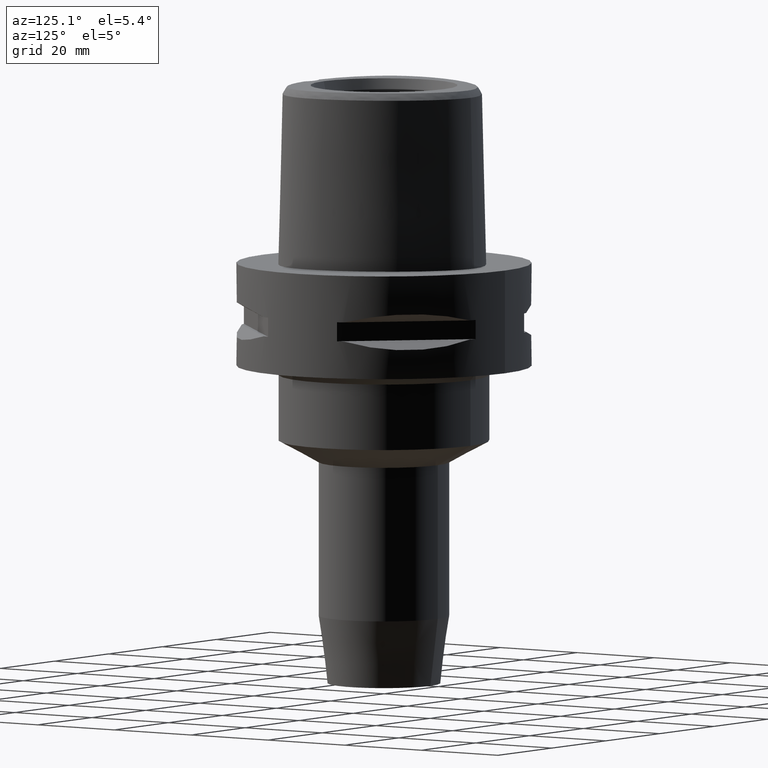
[diagram: clean part render]
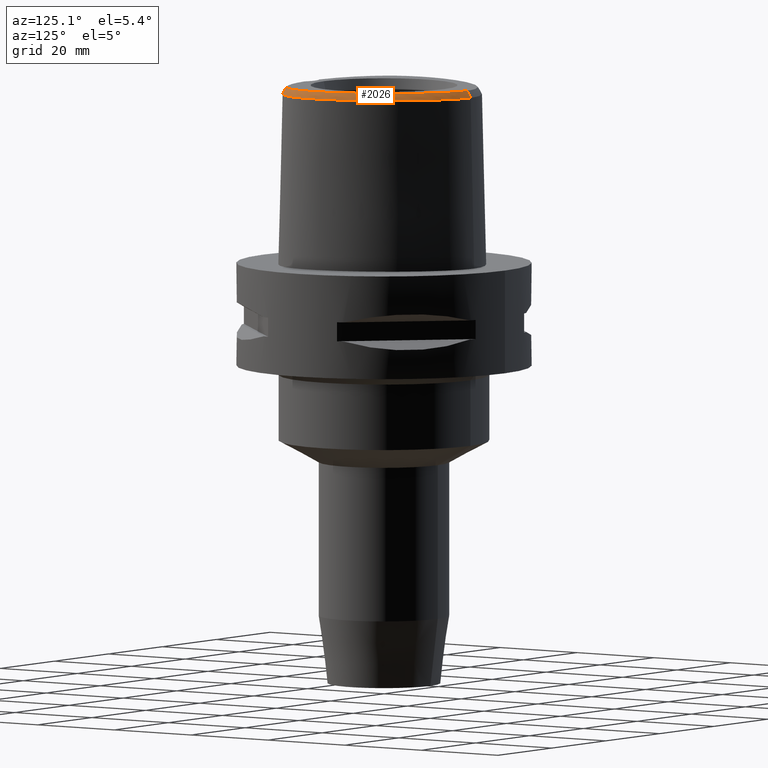
[diagram: same view with one face highlighted and labeled with its STEP entity id]
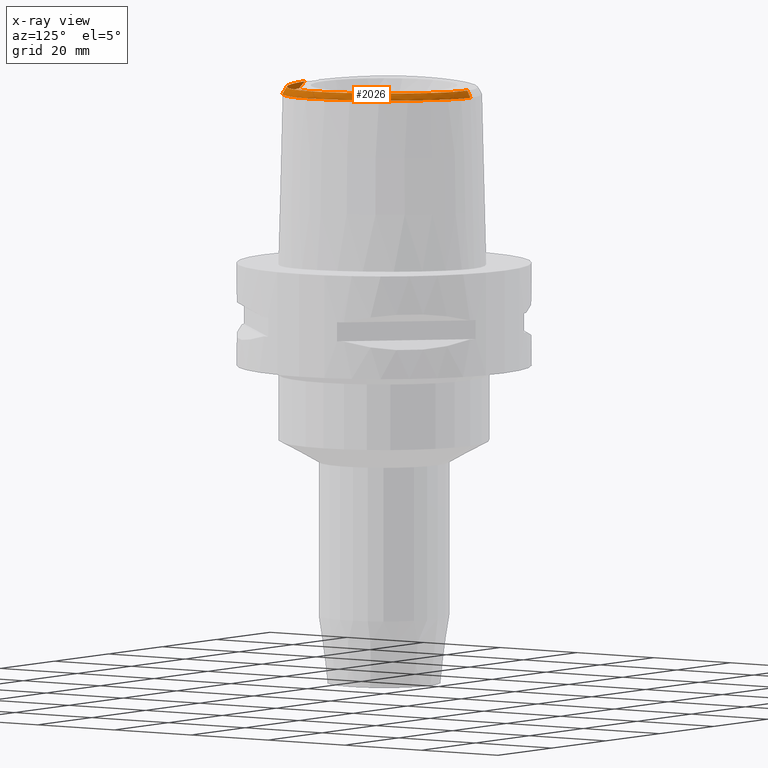
[diagram: x-ray of the same camera — body ghosted, the highlighted face saturated]
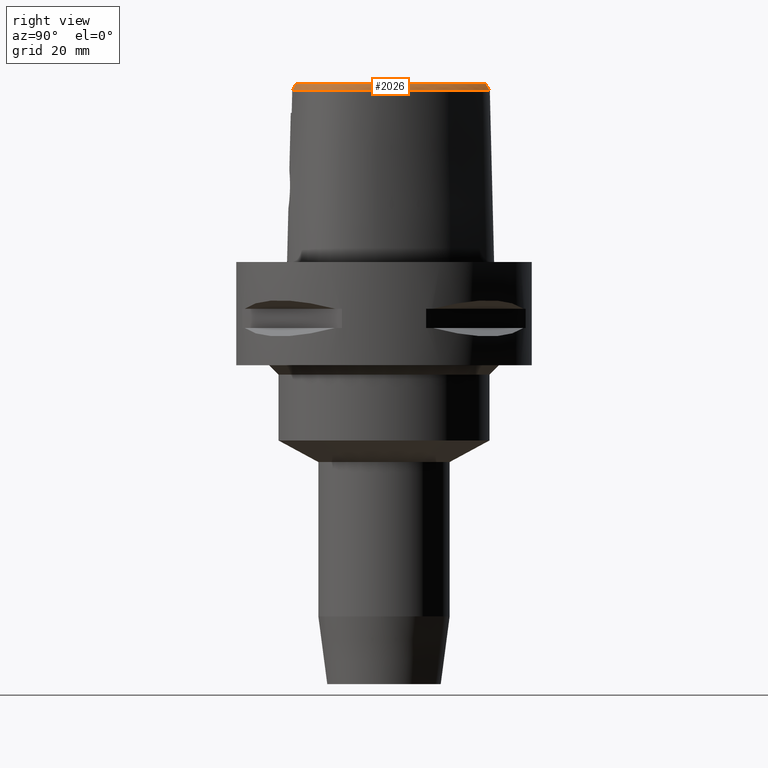
[diagram: same view with one face highlighted and labeled with its STEP entity id]
A machine part, auxiliary view. The second image highlights one B-rep face of the part: STEP entity #2026.
The next image is the same camera in x-ray: the body ghosted, the highlighted face saturated — about 0% of this face is hidden behind the body in this view.
A second angle (right view) of the same face is appended — the face is thin or edge-on in the first view.
In plain terms, the highlighted face is a freeform B-spline surface patch.
Its self-contained STEP definition (entity closure, byte-faithful):
#72=CARTESIAN_POINT('',(-3.470663397238E-11,2.168728795390E1,3.8E1));
#77=CARTESIAN_POINT('',(-3.470663397238E-11,2.168728795390E1,3.8E1));
#78=CARTESIAN_POINT('',(3.600081486032E-1,2.168728795390E1,3.8E1));
#79=CARTESIAN_POINT('',(1.095814633195E0,2.164921257123E1,3.8E1));
#80=CARTESIAN_POINT('',(2.237045914867E0,2.147217550050E1,3.8E1));
#81=CARTESIAN_POINT('',(3.445385499409E0,2.116021851481E1,3.8E1));
#82=CARTESIAN_POINT('',(4.731603891525E0,2.069110374592E1,3.8E1));
#83=CARTESIAN_POINT('',(6.066237151130E0,2.005638731326E1,3.8E1));
#84=CARTESIAN_POINT('',(7.390373626614E0,1.928024451342E1,3.8E1));
#85=CARTESIAN_POINT('',(8.721111052503E0,1.835274876699E1,3.8E1));
#86=CARTESIAN_POINT('',(1.006306682264E1,1.726170920306E1,3.8E1));
#87=CARTESIAN_POINT('',(1.145626739706E1,1.595592580129E1,3.8E1));
#88=CARTESIAN_POINT('',(1.296077108307E1,1.432560092740E1,3.8E1));
#89=CARTESIAN_POINT('',(1.451274077919E1,1.235208670969E1,3.8E1));
#90=CARTESIAN_POINT('',(1.594259143087E1,1.020526619252E1,3.8E1));
#91=CARTESIAN_POINT('',(1.721680311329E1,7.931705562021E0,3.8E1));
#92=CARTESIAN_POINT('',(1.829606143106E1,5.597042509225E0,3.8E1));
#93=CARTESIAN_POINT('',(1.912931562740E1,3.343492327677E0,3.8E1));
#94=CARTESIAN_POINT('',(1.970359997833E1,1.333997744826E0,3.8E1));
#95=CARTESIAN_POINT('',(2.008357130727E1,-4.716261842530E-1,3.8E1));
#96=CARTESIAN_POINT('',(2.031277215513E1,-2.149121673685E0,3.8E1));
#97=CARTESIAN_POINT('',(2.040928267634E1,-3.736122188726E0,3.8E1));
#98=CARTESIAN_POINT('',(2.037878769746E1,-5.257945165443E0,3.8E1));
#99=CARTESIAN_POINT('',(2.021995697845E1,-6.701646224879E0,3.8E1));
#100=CARTESIAN_POINT('',(1.994991294827E1,-7.999711896863E0,3.8E1));
#101=CARTESIAN_POINT('',(1.958720184886E1,-9.161367824425E0,3.8E1));
#102=CARTESIAN_POINT('',(1.914381200021E1,-1.020176955586E1,3.8E1));
#103=CARTESIAN_POINT('',(1.862446316469E1,-1.114221936084E1,3.8E1));
#104=CARTESIAN_POINT('',(1.799605509206E1,-1.204719476781E1,3.8E1));
#105=CARTESIAN_POINT('',(1.722625151621E1,-1.294716617093E1,3.8E1));
#106=CARTESIAN_POINT('',(1.630340192709E1,-1.383262678892E1,3.8E1));
#107=CARTESIAN_POINT('',(1.519513042100E1,-1.470744016310E1,3.8E1));
#108=CARTESIAN_POINT('',(1.394028754596E1,-1.552208338004E1,3.8E1));
#109=CARTESIAN_POINT('',(1.256738277710E1,-1.625871373852E1,3.8E1));
#110=CARTESIAN_POINT('',(1.105156259701E1,-1.692694529073E1,3.8E1));
#111=CARTESIAN_POINT('',(9.392329850105E0,-1.751890748088E1,3.8E1));
#112=CARTESIAN_POINT('',(7.480586106843E0,-1.805458470416E1,3.8E1));
#113=CARTESIAN_POINT('',(5.209046193961E0,-1.851024520604E1,3.8E1));
#114=CARTESIAN_POINT('',(3.553979628531E0,-1.871058638715E1,3.8E1));
#115=CARTESIAN_POINT('',(2.682287482607E0,-1.878036330229E1,3.8E1));
#136=CARTESIAN_POINT('',(3.637738219117E0,-1.956971420299E1,3.652185956444E1));
#137=CARTESIAN_POINT('',(3.538536273609E0,-1.946451284953E1,3.671639311911E1));
#138=CARTESIAN_POINT('',(3.334098632793E0,-1.926602617850E1,3.708535300827E1));
#139=CARTESIAN_POINT('',(3.014431591359E0,-1.900393218886E1,3.757690690227E1));
#140=CARTESIAN_POINT('',(2.793767706676E0,-1.885122769916E1,3.786560215335E1));
#141=CARTESIAN_POINT('',(2.682287482607E0,-1.878036330229E1,3.8E1));
#146=CARTESIAN_POINT('',(-1.617285911022E-11,2.256201468012E1,
3.652186680744E1));
#147=CARTESIAN_POINT('',(3.781707213584E-1,2.256201468011E1,3.652186680744E1));
#148=CARTESIAN_POINT('',(1.134730585226E0,2.252498071705E1,3.652179120620E1));
#149=CARTESIAN_POINT('',(2.356063939295E0,2.234195482065E1,3.652187787897E1));
#150=CARTESIAN_POINT('',(3.623834858981E0,2.202086391621E1,3.652186376102E1));
#151=CARTESIAN_POINT('',(4.952045757185E0,2.154676064978E1,3.652187402960E1));
#152=CARTESIAN_POINT('',(6.329481850397E0,2.090709828528E1,3.652186529344E1));
#153=CARTESIAN_POINT('',(7.723199685630E0,2.010637444152E1,3.652186854430E1));
#154=CARTESIAN_POINT('',(9.105385253287E0,1.915869409911E1,3.652186637425E1));
#155=CARTESIAN_POINT('',(1.050375335652E1,1.803874747388E1,3.652186471326E1));
#156=CARTESIAN_POINT('',(1.194349139875E1,1.670689193153E1,3.652187410923E1));
#157=CARTESIAN_POINT('',(1.347317864387E1,1.506994472095E1,3.652184803073E1));
#158=CARTESIAN_POINT('',(1.501668659181E1,1.314288457789E1,3.652187441190E1));
#159=CARTESIAN_POINT('',(1.648740919358E1,1.098786647899E1,3.652186151903E1));
#160=CARTESIAN_POINT('',(1.781598819928E1,8.678010767453E0,3.652186754999E1));
#161=CARTESIAN_POINT('',(1.893654303366E1,6.324554453322E0,3.652185257979E1));
#162=CARTESIAN_POINT('',(1.980029771016E1,4.090529039235E0,3.652186292907E1));
#163=CARTESIAN_POINT('',(2.043911920172E1,1.993518421664E0,3.652186534459E1));
#164=CARTESIAN_POINT('',(2.087682742100E1,6.488729142452E-2,3.652187516659E1));
#165=CARTESIAN_POINT('',(2.114826763138E1,-1.722731342534E0,3.652186215059E1));
#166=CARTESIAN_POINT('',(2.127602838199E1,-3.404450108041E0,3.652186790573E1));
#167=CARTESIAN_POINT('',(2.126873709660E1,-5.016094142175E0,3.652187095036E1));
#168=CARTESIAN_POINT('',(2.113114608610E1,-6.519810638381E0,3.652186951853E1));
#169=CARTESIAN_POINT('',(2.087477494423E1,-7.906445118288E0,3.652186475025E1));
#170=CARTESIAN_POINT('',(2.051516421701E1,-9.163969957777E0,3.652187606956E1));
#171=CARTESIAN_POINT('',(2.006346148229E1,-1.030530076995E1,3.652186813654E1));
#172=CARTESIAN_POINT('',(1.952443206762E1,-1.134661648806E1,3.652186808509E1));
#173=CARTESIAN_POINT('',(1.888354313508E1,-1.232283446321E1,3.652184821316E1));
#174=CARTESIAN_POINT('',(1.811807688083E1,-1.326963555217E1,3.652187114369E1));
#175=CARTESIAN_POINT('',(1.720139163244E1,-1.420243467213E1,3.652186714110E1));
#176=CARTESIAN_POINT('',(1.610761708013E1,-1.512115090738E1,3.652186914286E1));
#177=CARTESIAN_POINT('',(1.484401880206E1,-1.599721347267E1,3.652186772627E1));
#178=CARTESIAN_POINT('',(1.343434215592E1,-1.680274531018E1,3.652186438753E1));
#179=CARTESIAN_POINT('',(1.191851958667E1,-1.751648808611E1,3.652186788177E1));
#180=CARTESIAN_POINT('',(1.023240463630E1,-1.816430724128E1,3.652186509690E1));
#181=CARTESIAN_POINT('',(8.316043436837E0,-1.874503310632E1,3.652185929622E1));
#182=CARTESIAN_POINT('',(6.149923362368E0,-1.923360237106E1,3.652187626638E1));
#183=CARTESIAN_POINT('',(4.502877813721E0,-1.947753645443E1,3.652183733818E1));
#184=CARTESIAN_POINT('',(3.637738219117E0,-1.956971420299E1,3.652185956444E1));
#242=DIRECTION('',(-1.079073595906E-11,-5.092834681090E-1,8.605988316927E-1));
#243=VECTOR('',#242,1.717563559379E0);
#244=CARTESIAN_POINT('',(-1.617285911022E-11,2.256201468012E1,
3.652186680744E1));
#245=LINE('',#244,#243);
#1554=CARTESIAN_POINT('',(2.682287482605E0,-1.878036330229E1,3.8E1));
#1555=VERTEX_POINT('',#1554);
#1556=VERTEX_POINT('',#72);
#1561=VERTEX_POINT('',#136);
#1568=CARTESIAN_POINT('',(-1.617285911022E-11,2.256201468012E1,
3.652186680744E1));
#1569=VERTEX_POINT('',#1568);
#1769=CARTESIAN_POINT('',(2.066179407215E0,-1.872795564002E1,3.816189696351E1));
#1770=CARTESIAN_POINT('',(2.088043105936E0,-1.908273778746E1,3.756124089126E1));
#1771=CARTESIAN_POINT('',(2.109906804657E0,-1.943751993490E1,3.696058481902E1));
#1772=CARTESIAN_POINT('',(2.131770503377E0,-1.979230208234E1,3.635992874677E1));
#1773=CARTESIAN_POINT('',(2.269682290328E0,-1.871541268844E1,3.816189695828E1));
#1774=CARTESIAN_POINT('',(2.293712775902E0,-1.907006130914E1,3.756124090543E1));
#1775=CARTESIAN_POINT('',(2.317743261475E0,-1.942470992984E1,3.696058485257E1));
#1776=CARTESIAN_POINT('',(2.341773747049E0,-1.977935855054E1,3.635992879972E1));
#1777=CARTESIAN_POINT('',(2.635571019639E0,-1.868948771538E1,3.816189695319E1));
#1778=CARTESIAN_POINT('',(2.663509854766E0,-1.904385954770E1,3.756124091921E1));
#1779=CARTESIAN_POINT('',(2.691448689893E0,-1.939823138001E1,3.696058488523E1));
#1780=CARTESIAN_POINT('',(2.719387525020E0,-1.975260321233E1,3.635992885124E1));
#1781=CARTESIAN_POINT('',(3.519216999088E0,-1.861218000227E1,3.816189696452E1));
#1782=CARTESIAN_POINT('',(3.556668975879E0,-1.896571965183E1,3.756124088852E1));
#1783=CARTESIAN_POINT('',(3.594120952669E0,-1.931925930140E1,3.696058481252E1));
#1784=CARTESIAN_POINT('',(3.631572929460E0,-1.967279895096E1,3.635992873652E1));
#1785=CARTESIAN_POINT('',(4.701987368532E0,-1.847110360978E1,3.816189705007E1));
#1786=CARTESIAN_POINT('',(4.752403017003E0,-1.882310272663E1,3.756124065665E1));
#1787=CARTESIAN_POINT('',(4.802818665475E0,-1.917510184348E1,3.696058426322E1));
#1788=CARTESIAN_POINT('',(4.853234313946E0,-1.952710096032E1,3.635992786980E1));
#1789=CARTESIAN_POINT('',(6.178351501498E0,-1.822262391125E1,3.816189706861E1));
#1790=CARTESIAN_POINT('',(6.245669601610E0,-1.857178815216E1,3.756124060643E1));
#1791=CARTESIAN_POINT('',(6.312987701722E0,-1.892095239307E1,3.696058414425E1));
#1792=CARTESIAN_POINT('',(6.380305801834E0,-1.927011663399E1,3.635992768207E1));
#1793=CARTESIAN_POINT('',(7.584128089144E0,-1.791515994758E1,3.816189675690E1));
#1794=CARTESIAN_POINT('',(7.668389699951E0,-1.826063061819E1,3.756124145117E1));
#1795=CARTESIAN_POINT('',(7.752651310758E0,-1.860610128879E1,3.696058614545E1));
#1796=CARTESIAN_POINT('',(7.836912921564E0,-1.895157195940E1,3.635993083972E1));
#1797=CARTESIAN_POINT('',(8.909627046577E0,-1.755608822509E1,3.816189663801E1));
#1798=CARTESIAN_POINT('',(9.010885275417E0,-1.789696969254E1,3.756124177338E1));
#1799=CARTESIAN_POINT('',(9.112143504257E0,-1.823785116E1,3.696058690876E1));
#1800=CARTESIAN_POINT('',(9.213401733097E0,-1.857873262745E1,3.635993204413E1));
#1801=CARTESIAN_POINT('',(1.014563072873E1,-1.715387204958E1,3.816189679694E1));
#1802=CARTESIAN_POINT('',(1.026392992097E1,-1.748922657222E1,3.756124134265E1));
#1803=CARTESIAN_POINT('',(1.038222911321E1,-1.782458109487E1,3.696058588836E1));
#1804=CARTESIAN_POINT('',(1.050052830545E1,-1.815993561752E1,3.635993043407E1));
#1805=CARTESIAN_POINT('',(1.128692810569E1,-1.671705966360E1,3.816189707832E1));
#1806=CARTESIAN_POINT('',(1.142229468966E1,-1.704590282392E1,3.756124058008E1));
#1807=CARTESIAN_POINT('',(1.155766127362E1,-1.737474598423E1,3.696058408185E1));
#1808=CARTESIAN_POINT('',(1.169302785759E1,-1.770358914455E1,3.635992758361E1));
#1809=CARTESIAN_POINT('',(1.233514152858E1,-1.625210895564E1,3.816189707032E1));
#1810=CARTESIAN_POINT('',(1.248756283758E1,-1.657340987423E1,3.756124060178E1));
#1811=CARTESIAN_POINT('',(1.263998414659E1,-1.689471079282E1,3.696058413324E1));
#1812=CARTESIAN_POINT('',(1.279240545559E1,-1.721601171141E1,3.635992766471E1));
#1813=CARTESIAN_POINT('',(1.329325253066E1,-1.576484682878E1,3.816189705882E1));
#1814=CARTESIAN_POINT('',(1.346263761941E1,-1.607754529398E1,3.756124063292E1));
#1815=CARTESIAN_POINT('',(1.363202270816E1,-1.639024375918E1,3.696058420702E1));
#1816=CARTESIAN_POINT('',(1.380140779691E1,-1.670294222438E1,3.635992778111E1));
#1817=CARTESIAN_POINT('',(1.416362791874E1,-1.526117966112E1,3.816189700301E1));
#1818=CARTESIAN_POINT('',(1.434985408334E1,-1.556415943070E1,3.756124078419E1));
#1819=CARTESIAN_POINT('',(1.453608024795E1,-1.586713920029E1,3.696058456536E1));
#1820=CARTESIAN_POINT('',(1.472230641255E1,-1.617011896987E1,3.635992834654E1));
#1821=CARTESIAN_POINT('',(1.495161853013E1,-1.474511828239E1,3.816189695658E1));
#1822=CARTESIAN_POINT('',(1.515444520048E1,-1.503725417992E1,3.756124091E1));
#1823=CARTESIAN_POINT('',(1.535727187084E1,-1.532939007746E1,3.696058486342E1));
#1824=CARTESIAN_POINT('',(1.556009854119E1,-1.562152597499E1,3.635992881683E1));
#1825=CARTESIAN_POINT('',(1.566172744018E1,-1.422065073374E1,3.816189703860E1));
#1826=CARTESIAN_POINT('',(1.588084538010E1,-1.450078457733E1,3.756124068776E1));
#1827=CARTESIAN_POINT('',(1.609996332002E1,-1.478091842092E1,3.696058433693E1));
#1828=CARTESIAN_POINT('',(1.631908125994E1,-1.506105226451E1,3.635992798610E1));
#1829=CARTESIAN_POINT('',(1.629949491216E1,-1.369041210890E1,3.816189707140E1));
#1830=CARTESIAN_POINT('',(1.653449866629E1,-1.395736936317E1,3.756124059886E1));
#1831=CARTESIAN_POINT('',(1.676950242043E1,-1.422432661743E1,3.696058412632E1));
#1832=CARTESIAN_POINT('',(1.700450617456E1,-1.449128387170E1,3.635992765378E1));
#1833=CARTESIAN_POINT('',(1.687107150524E1,-1.315568400720E1,3.816189706124E1));
#1834=CARTESIAN_POINT('',(1.712143021764E1,-1.340830714329E1,3.756124062638E1));
#1835=CARTESIAN_POINT('',(1.737178893004E1,-1.366093027938E1,3.696058419152E1));
#1836=CARTESIAN_POINT('',(1.762214764243E1,-1.391355341547E1,3.635992775667E1));
#1837=CARTESIAN_POINT('',(1.738161636115E1,-1.261764409282E1,3.816189704659E1));
#1838=CARTESIAN_POINT('',(1.764669066960E1,-1.285479036684E1,3.756124066610E1));
#1839=CARTESIAN_POINT('',(1.791176497804E1,-1.309193664087E1,3.696058428562E1));
#1840=CARTESIAN_POINT('',(1.817683928649E1,-1.332908291490E1,3.635992790513E1));
#1841=CARTESIAN_POINT('',(1.783644427618E1,-1.207630457412E1,3.816189699203E1));
#1842=CARTESIAN_POINT('',(1.811547596703E1,-1.229686828446E1,3.756124081397E1));
#1843=CARTESIAN_POINT('',(1.839450765789E1,-1.251743199480E1,3.696058463590E1));
#1844=CARTESIAN_POINT('',(1.867353934874E1,-1.273799570514E1,3.635992845784E1));
#1845=CARTESIAN_POINT('',(1.824010824625E1,-1.153125731076E1,3.816189708121E1));
#1846=CARTESIAN_POINT('',(1.853220866630E1,-1.173420422075E1,3.756124057225E1));
#1847=CARTESIAN_POINT('',(1.882430908635E1,-1.193715113073E1,3.696058406330E1));
#1848=CARTESIAN_POINT('',(1.911640950640E1,-1.214009804071E1,3.635992755434E1));
#1849=CARTESIAN_POINT('',(1.859523927683E1,-1.098403400413E1,3.816189703246E1));
#1850=CARTESIAN_POINT('',(1.889943082975E1,-1.116837999052E1,3.756124070439E1));
#1851=CARTESIAN_POINT('',(1.920362238267E1,-1.135272597691E1,3.696058437631E1));
#1852=CARTESIAN_POINT('',(1.950781393559E1,-1.153707196330E1,3.635992804824E1));
#1853=CARTESIAN_POINT('',(1.891122414469E1,-1.042339834598E1,3.816189708127E1));
#1854=CARTESIAN_POINT('',(1.922646555921E1,-1.058813404789E1,3.756124057211E1));
#1855=CARTESIAN_POINT('',(1.954170697372E1,-1.075286974980E1,3.696058406296E1));
#1856=CARTESIAN_POINT('',(1.985694838824E1,-1.091760545171E1,3.635992755381E1));
#1857=CARTESIAN_POINT('',(1.919921695673E1,-9.828716671958E0,3.816189703346E1));
#1858=CARTESIAN_POINT('',(1.952406895095E1,-9.973561221150E0,3.756124070168E1));
#1859=CARTESIAN_POINT('',(1.984892094517E1,-1.011840577034E1,3.696058436991E1));
#1860=CARTESIAN_POINT('',(2.017377293940E1,-1.026325031953E1,3.635992803814E1));
#1861=CARTESIAN_POINT('',(1.946014087139E1,-9.192624845861E0,3.816189700700E1));
#1862=CARTESIAN_POINT('',(1.979327341244E1,-9.317238624069E0,3.756124077340E1));
#1863=CARTESIAN_POINT('',(2.012640595349E1,-9.441852402277E0,3.696058453979E1));
#1864=CARTESIAN_POINT('',(2.045953849454E1,-9.566466180485E0,3.635992830619E1));
#1865=CARTESIAN_POINT('',(1.969157199425E1,-8.513075605680E0,3.816189705488E1));
#1866=CARTESIAN_POINT('',(2.003164143890E1,-8.617257906367E0,3.756124064362E1));
#1867=CARTESIAN_POINT('',(2.037171088354E1,-8.721440207054E0,3.696058423237E1));
#1868=CARTESIAN_POINT('',(2.071178032819E1,-8.825622507741E0,3.635992782111E1));
#1869=CARTESIAN_POINT('',(1.989151358950E1,-7.785318118117E0,3.816189706512E1));
#1870=CARTESIAN_POINT('',(2.023718923438E1,-7.869011687927E0,3.756124061588E1));
#1871=CARTESIAN_POINT('',(2.058286487927E1,-7.952705257737E0,3.696058416664E1));
#1872=CARTESIAN_POINT('',(2.092854052415E1,-8.036398827548E0,3.635992771740E1));
#1873=CARTESIAN_POINT('',(2.005693882295E1,-7.005128105699E0,3.816189707052E1));
#1874=CARTESIAN_POINT('',(2.040692392316E1,-7.068386819280E0,3.756124060126E1));
#1875=CARTESIAN_POINT('',(2.075690902337E1,-7.131645532860E0,3.696058413200E1));
#1876=CARTESIAN_POINT('',(2.110689412358E1,-7.194904246441E0,3.635992766275E1));
#1877=CARTESIAN_POINT('',(2.018408138174E1,-6.168267240201E0,3.816189700660E1));
#1878=CARTESIAN_POINT('',(2.053712383268E1,-6.211242383983E0,3.756124077448E1));
#1879=CARTESIAN_POINT('',(2.089016628362E1,-6.254217527765E0,3.696058454236E1));
#1880=CARTESIAN_POINT('',(2.124320873456E1,-6.297192671546E0,3.635992831025E1));
#1881=CARTESIAN_POINT('',(2.026846444677E1,-5.270196279723E0,3.816189695371E1));
#1882=CARTESIAN_POINT('',(2.062336299956E1,-5.293158718831E0,3.756124091781E1));
#1883=CARTESIAN_POINT('',(2.097826155235E1,-5.316121157940E0,3.696058488191E1));
#1884=CARTESIAN_POINT('',(2.133316010514E1,-5.339083597048E0,3.635992884601E1));
#1885=CARTESIAN_POINT('',(2.030477030301E1,-4.308451286064E0,3.816189703585E1));
#1886=CARTESIAN_POINT('',(2.066038868491E1,-4.311729812258E0,3.756124069520E1));
#1887=CARTESIAN_POINT('',(2.101600706681E1,-4.315008338451E0,3.696058435456E1));
#1888=CARTESIAN_POINT('',(2.137162544871E1,-4.318286864645E0,3.635992801391E1));
#1889=CARTESIAN_POINT('',(2.028716594187E1,-3.280597406745E0,3.816189705570E1));
#1890=CARTESIAN_POINT('',(2.064243074727E1,-3.264573767079E0,3.756124064140E1));
#1891=CARTESIAN_POINT('',(2.099769555267E1,-3.248550127414E0,3.696058422710E1));
#1892=CARTESIAN_POINT('',(2.135296035807E1,-3.232526487748E0,3.635992781280E1));
#1893=CARTESIAN_POINT('',(2.020939396208E1,-2.184744162166E0,3.816189709606E1));
#1894=CARTESIAN_POINT('',(2.056330031890E1,-2.149882226745E0,3.756124053203E1));
#1895=CARTESIAN_POINT('',(2.091720667572E1,-2.115020291323E0,3.696058396799E1));
#1896=CARTESIAN_POINT('',(2.127111303254E1,-2.080158355902E0,3.635992740396E1));
#1897=CARTESIAN_POINT('',(2.006506085622E1,-1.022075625540E0,3.816189700113E1));
#1898=CARTESIAN_POINT('',(2.041666333794E1,-9.688199195775E-1,
3.756124078932E1));
#1899=CARTESIAN_POINT('',(2.076826581965E1,-9.155642136154E-1,
3.696058457751E1));
#1900=CARTESIAN_POINT('',(2.111986830137E1,-8.623085076532E-1,
3.635992836570E1));
#1901=CARTESIAN_POINT('',(1.984758857219E1,2.069886352685E-1,3.816189670453E1));
#1902=CARTESIAN_POINT('',(2.019601148309E1,2.781039970591E-1,3.756124159313E1));
#1903=CARTESIAN_POINT('',(2.054443439399E1,3.492193588496E-1,3.696058648172E1));
#1904=CARTESIAN_POINT('',(2.089285730489E1,4.203347206402E-1,3.635993137032E1));
#1905=CARTESIAN_POINT('',(1.955104487820E1,1.498203124816E0,3.816189663012E1));
#1906=CARTESIAN_POINT('',(1.989546535746E1,1.586671850279E0,3.756124179476E1));
#1907=CARTESIAN_POINT('',(2.023988583672E1,1.675140575742E0,3.696058695939E1));
#1908=CARTESIAN_POINT('',(2.058430631599E1,1.763609301206E0,3.635993212402E1));
#1909=CARTESIAN_POINT('',(1.917118341300E1,2.841842590864E0,3.816189684682E1));
#1910=CARTESIAN_POINT('',(1.951082788274E1,2.947155279697E0,3.756124120749E1));
#1911=CARTESIAN_POINT('',(1.985047235249E1,3.052467968530E0,3.696058556815E1));
#1912=CARTESIAN_POINT('',(2.019011682223E1,3.157780657364E0,3.635992992882E1));
#1913=CARTESIAN_POINT('',(1.870589300674E1,4.224955374426E0,3.816189711329E1));
#1914=CARTESIAN_POINT('',(1.904001720392E1,4.346641860841E0,3.756124048534E1));
#1915=CARTESIAN_POINT('',(1.937414140111E1,4.468328347256E0,3.696058385739E1));
#1916=CARTESIAN_POINT('',(1.970826559829E1,4.590014833671E0,3.635992722945E1));
#1917=CARTESIAN_POINT('',(1.815409221442E1,5.635468788243E0,3.816189701932E1));
#1918=CARTESIAN_POINT('',(1.848199269753E1,5.773039490752E0,3.756124074E1));
#1919=CARTESIAN_POINT('',(1.880989318063E1,5.910610193260E0,3.696058446068E1));
#1920=CARTESIAN_POINT('',(1.913779366374E1,6.048180895769E0,3.635992818137E1));
#1921=CARTESIAN_POINT('',(1.751722011804E1,7.058644424950E0,3.816189695011E1));
#1922=CARTESIAN_POINT('',(1.783820807012E1,7.211646595687E0,3.756124092757E1));
#1923=CARTESIAN_POINT('',(1.815919602220E1,7.364648766423E0,3.696058490502E1));
#1924=CARTESIAN_POINT('',(1.848018397428E1,7.517650937160E0,3.635992888248E1));
#1925=CARTESIAN_POINT('',(1.680152823928E1,8.473426647429E0,3.816189701406E1));
#1926=CARTESIAN_POINT('',(1.711492673509E1,8.641426406026E0,3.756124075426E1));
#1927=CARTESIAN_POINT('',(1.742832523091E1,8.809426164623E0,3.696058449446E1));
#1928=CARTESIAN_POINT('',(1.774172372673E1,8.977425923220E0,3.635992823466E1));
#1929=CARTESIAN_POINT('',(1.601541907752E1,9.860186538276E0,3.816189705039E1));
#1930=CARTESIAN_POINT('',(1.632052474592E1,1.004281457048E1,3.756124065576E1));
#1931=CARTESIAN_POINT('',(1.662563041433E1,1.022544260268E1,3.696058426113E1));
#1932=CARTESIAN_POINT('',(1.693073608273E1,1.040807063487E1,3.635992786650E1));
#1933=CARTESIAN_POINT('',(1.516679734013E1,1.120457644009E1,3.816189695296E1));
#1934=CARTESIAN_POINT('',(1.546293992368E1,1.140140690769E1,3.756124091984E1));
#1935=CARTESIAN_POINT('',(1.575908250723E1,1.159823737528E1,3.696058488672E1));
#1936=CARTESIAN_POINT('',(1.605522509078E1,1.179506784288E1,3.635992885360E1));
#1937=CARTESIAN_POINT('',(1.426662286079E1,1.249108799588E1,3.816189698100E1));
#1938=CARTESIAN_POINT('',(1.455309690942E1,1.270174517386E1,3.756124084384E1));
#1939=CARTESIAN_POINT('',(1.483957095805E1,1.291240235185E1,3.696058470668E1));
#1940=CARTESIAN_POINT('',(1.512604500668E1,1.312305952983E1,3.635992856951E1));
#1941=CARTESIAN_POINT('',(1.332989068931E1,1.370233788140E1,3.816189710299E1));
#1942=CARTESIAN_POINT('',(1.360597272943E1,1.392644626687E1,3.756124051325E1));
#1943=CARTESIAN_POINT('',(1.388205476956E1,1.415055465233E1,3.696058392351E1));
#1944=CARTESIAN_POINT('',(1.415813680969E1,1.437466303780E1,3.635992733378E1));
#1945=CARTESIAN_POINT('',(1.236985413618E1,1.482724559342E1,3.816189696582E1));
#1946=CARTESIAN_POINT('',(1.263476882408E1,1.506445537716E1,3.756124088498E1));
#1947=CARTESIAN_POINT('',(1.289968351198E1,1.530166516089E1,3.696058480414E1));
#1948=CARTESIAN_POINT('',(1.316459819988E1,1.553887494463E1,3.635992872329E1));
#1949=CARTESIAN_POINT('',(1.139768400972E1,1.585981929757E1,3.816189667475E1));
#1950=CARTESIAN_POINT('',(1.165066724047E1,1.610972032269E1,3.756124167382E1));
#1951=CARTESIAN_POINT('',(1.190365047122E1,1.635962134780E1,3.696058667289E1));
#1952=CARTESIAN_POINT('',(1.215663370197E1,1.660952237292E1,3.635993167196E1));
#1953=CARTESIAN_POINT('',(1.042524428931E1,1.679530639121E1,3.816189665519E1));
#1954=CARTESIAN_POINT('',(1.066547826980E1,1.705749381639E1,3.756124172685E1));
#1955=CARTESIAN_POINT('',(1.090571225030E1,1.731968124157E1,3.696058679850E1));
#1956=CARTESIAN_POINT('',(1.114594623079E1,1.758186866675E1,3.635993187016E1));
#1957=CARTESIAN_POINT('',(9.463754329526E0,1.763130422744E1,3.816189690030E1));
#1958=CARTESIAN_POINT('',(9.690399620816E0,1.790533131794E1,3.756124106256E1));
#1959=CARTESIAN_POINT('',(9.917044912107E0,1.817935840845E1,3.696058522483E1));
#1960=CARTESIAN_POINT('',(1.014369020340E1,1.845338549896E1,3.635992938709E1));
#1961=CARTESIAN_POINT('',(8.521662735885E0,1.836917513797E1,3.816189710454E1));
#1962=CARTESIAN_POINT('',(8.733826957825E0,1.865456939782E1,3.756124050902E1));
#1963=CARTESIAN_POINT('',(8.945991179766E0,1.893996365767E1,3.696058391350E1));
#1964=CARTESIAN_POINT('',(9.158155401706E0,1.922535791752E1,3.635992731798E1));
#1965=CARTESIAN_POINT('',(7.602913356581E0,1.901419587537E1,3.816189704822E1));
#1966=CARTESIAN_POINT('',(7.799732760896E0,1.931038874493E1,3.756124066167E1));
#1967=CARTESIAN_POINT('',(7.996552165211E0,1.960658161449E1,3.696058427512E1));
#1968=CARTESIAN_POINT('',(8.193371569526E0,1.990277448404E1,3.635992788857E1));
#1969=CARTESIAN_POINT('',(6.711607239904E0,1.957147000825E1,3.816189705187E1));
#1970=CARTESIAN_POINT('',(6.892193866094E0,1.987783884742E1,3.756124065177E1));
#1971=CARTESIAN_POINT('',(7.072780492283E0,2.018420768659E1,3.696058425167E1));
#1972=CARTESIAN_POINT('',(7.253367118473E0,2.049057652576E1,3.635992785157E1));
#1973=CARTESIAN_POINT('',(5.850428643997E0,2.004673305560E1,3.816189698928E1));
#1974=CARTESIAN_POINT('',(6.013891413087E0,2.036257874423E1,3.756124082139E1));
#1975=CARTESIAN_POINT('',(6.177354182177E0,2.067842443285E1,3.696058465351E1));
#1976=CARTESIAN_POINT('',(6.340816951267E0,2.099427012148E1,3.635992848562E1));
#1977=CARTESIAN_POINT('',(5.020035857671E0,2.044652183265E1,3.816189700296E1));
#1978=CARTESIAN_POINT('',(5.165522010855E0,2.077104883170E1,3.756124078433E1));
#1979=CARTESIAN_POINT('',(5.311008164039E0,2.109557583075E1,3.696058456569E1));
#1980=CARTESIAN_POINT('',(5.456494317223E0,2.142010282979E1,3.635992834706E1));
#1981=CARTESIAN_POINT('',(4.221521810169E0,2.077660523586E1,3.816189705499E1));
#1982=CARTESIAN_POINT('',(4.348182219599E0,2.110894031039E1,3.756124064332E1));
#1983=CARTESIAN_POINT('',(4.474842629029E0,2.144127538492E1,3.696058423165E1));
#1984=CARTESIAN_POINT('',(4.601503038460E0,2.177361045945E1,3.635992781998E1));
#1985=CARTESIAN_POINT('',(3.453332580574E0,2.104331065144E1,3.816189700723E1));
#1986=CARTESIAN_POINT('',(3.560389748713E0,2.138247632793E1,3.756124077276E1));
#1987=CARTESIAN_POINT('',(3.667446916853E0,2.172164200442E1,3.696058453830E1));
#1988=CARTESIAN_POINT('',(3.774504084992E0,2.206080768091E1,3.635992830383E1));
#1989=CARTESIAN_POINT('',(2.713554875322E0,2.125230923687E1,3.816189699430E1));
#1990=CARTESIAN_POINT('',(2.800289218416E0,2.159723907467E1,3.756124080782E1));
#1991=CARTESIAN_POINT('',(2.887023561509E0,2.194216891247E1,3.696058462134E1));
#1992=CARTESIAN_POINT('',(2.973757904603E0,2.228709875027E1,3.635992843486E1));
#1993=CARTESIAN_POINT('',(2.000590956188E0,2.140835256199E1,3.816189705366E1));
#1994=CARTESIAN_POINT('',(2.066369123090E0,2.175789169119E1,3.756124064692E1));
#1995=CARTESIAN_POINT('',(2.132147289992E0,2.210743082039E1,3.696058424018E1));
#1996=CARTESIAN_POINT('',(2.197925456894E0,2.245696994959E1,3.635992783343E1));
#1997=CARTESIAN_POINT('',(1.313090936531E0,2.151569163798E1,3.816189711045E1));
#1998=CARTESIAN_POINT('',(1.357349816437E0,2.186860690992E1,3.756124049301E1));
#1999=CARTESIAN_POINT('',(1.401608696343E0,2.222152218187E1,3.696058387557E1));
#2000=CARTESIAN_POINT('',(1.445867576249E0,2.257443745381E1,3.635992725813E1));
#2001=CARTESIAN_POINT('',(6.453010629419E-1,2.157802869332E1,3.816189707632E1));
#2002=CARTESIAN_POINT('',(6.676354693907E-1,2.193301345413E1,3.756124058552E1));
#2003=CARTESIAN_POINT('',(6.899698758395E-1,2.228799821493E1,3.696058409472E1));
#2004=CARTESIAN_POINT('',(7.123042822883E-1,2.264298297574E1,3.635992760392E1));
#2005=CARTESIAN_POINT('',(2.238378949222E-2,2.159757426084E1,3.816189701983E1));
#2006=CARTESIAN_POINT('',(2.305374468524E-2,2.195324254726E1,3.756124073863E1));
#2007=CARTESIAN_POINT('',(2.372369987825E-2,2.230891083368E1,3.696058445743E1));
#2008=CARTESIAN_POINT('',(2.439365507127E-2,2.266457912011E1,3.635992817623E1));
#2009=CARTESIAN_POINT('',(-3.942395268742E-1,2.158596060776E1,
3.816189705339E1));
#2010=CARTESIAN_POINT('',(-4.076650720898E-1,2.194122275456E1,
3.756124064765E1));
#2011=CARTESIAN_POINT('',(-4.210906173054E-1,2.229648490136E1,
3.696058424192E1));
#2012=CARTESIAN_POINT('',(-4.345161625210E-1,2.265174704816E1,
3.635992783618E1));
#2013=CARTESIAN_POINT('',(-5.988059220501E-1,2.157514346279E1,
3.816189710275E1));
#2014=CARTESIAN_POINT('',(-6.188277488660E-1,2.193001363225E1,
3.756124051387E1));
#2015=CARTESIAN_POINT('',(-6.388495756819E-1,2.228488380172E1,
3.696058392499E1));
#2016=CARTESIAN_POINT('',(-6.588714024978E-1,2.263975397118E1,
3.635992733611E1));
#2017=B_SPLINE_SURFACE_WITH_KNOTS('',3,3,((#1769,#1770,#1771,#1772),(#1773,
#1774,#1775,#1776),(#1777,#1778,#1779,#1780),(#1781,#1782,#1783,#1784),(#1785,
#1786,#1787,#1788),(#1789,#1790,#1791,#1792),(#1793,#1794,#1795,#1796),(#1797,
#1798,#1799,#1800),(#1801,#1802,#1803,#1804),(#1805,#1806,#1807,#1808),(#1809,
#1810,#1811,#1812),(#1813,#1814,#1815,#1816),(#1817,#1818,#1819,#1820),(#1821,
#1822,#1823,#1824),(#1825,#1826,#1827,#1828),(#1829,#1830,#1831,#1832),(#1833,
#1834,#1835,#1836),(#1837,#1838,#1839,#1840),(#1841,#1842,#1843,#1844),(#1845,
#1846,#1847,#1848),(#1849,#1850,#1851,#1852),(#1853,#1854,#1855,#1856),(#1857,
#1858,#1859,#1860),(#1861,#1862,#1863,#1864),(#1865,#1866,#1867,#1868),(#1869,
#1870,#1871,#1872),(#1873,#1874,#1875,#1876),(#1877,#1878,#1879,#1880),(#1881,
#1882,#1883,#1884),(#1885,#1886,#1887,#1888),(#1889,#1890,#1891,#1892),(#1893,
#1894,#1895,#1896),(#1897,#1898,#1899,#1900),(#1901,#1902,#1903,#1904),(#1905,
#1906,#1907,#1908),(#1909,#1910,#1911,#1912),(#1913,#1914,#1915,#1916),(#1917,
#1918,#1919,#1920),(#1921,#1922,#1923,#1924),(#1925,#1926,#1927,#1928),(#1929,
#1930,#1931,#1932),(#1933,#1934,#1935,#1936),(#1937,#1938,#1939,#1940),(#1941,
#1942,#1943,#1944),(#1945,#1946,#1947,#1948),(#1949,#1950,#1951,#1952),(#1953,
#1954,#1955,#1956),(#1957,#1958,#1959,#1960),(#1961,#1962,#1963,#1964),(#1965,
#1966,#1967,#1968),(#1969,#1970,#1971,#1972),(#1973,#1974,#1975,#1976),(#1977,
#1978,#1979,#1980),(#1981,#1982,#1983,#1984),(#1985,#1986,#1987,#1988),(#1989,
#1990,#1991,#1992),(#1993,#1994,#1995,#1996),(#1997,#1998,#1999,#2000),(#2001,
#2002,#2003,#2004),(#2005,#2006,#2007,#2008),(#2009,#2010,#2011,#2012),(#2013,
#2014,#2015,#2016)),.UNSPECIFIED.,.F.,.F.,.F.,(4,1,1,1,1,1,1,1,1,1,1,1,1,1,1,1,
1,1,1,1,1,1,1,1,1,1,1,1,1,1,1,1,1,1,1,1,1,1,1,1,1,1,1,1,1,1,1,1,1,1,1,1,1,1,1,1,
1,1,1,4),(4,4),(-6.872922983042E-3,0.E0,5.521655259608E-3,2.328019712995E-2,
4.103873900030E-2,5.879728087064E-2,7.655582274102E-2,9.431436461132E-2,
1.120729064817E-1,1.298314483520E-1,1.475899902223E-1,1.653485320927E-1,
1.831070739630E-1,2.008656158334E-1,2.186241577037E-1,2.363826995741E-1,
2.541412414444E-1,2.718997833148E-1,2.896583251851E-1,3.074168670555E-1,
3.251754089258E-1,3.429339507961E-1,3.606924926665E-1,3.784510345368E-1,
3.962095764072E-1,4.139681182775E-1,4.317266601479E-1,4.494852020182E-1,
4.672437438886E-1,4.850022857589E-1,5.027608276292E-1,5.205193694996E-1,
5.382779113699E-1,5.560364532403E-1,5.737949951106E-1,5.915535369810E-1,
6.093120788513E-1,6.270706207217E-1,6.448291625920E-1,6.625877044623E-1,
6.803462463327E-1,6.981047882030E-1,7.158633300734E-1,7.336218719437E-1,
7.513804138142E-1,7.691389556845E-1,7.868974975549E-1,8.046560394252E-1,
8.224145812956E-1,8.401731231659E-1,8.579316650362E-1,8.756902069066E-1,
8.934487487769E-1,9.112072906473E-1,9.289658325176E-1,9.467243743880E-1,
9.644829162583E-1,9.822414581287E-1,1.E0,1.016088127154E0),(-8.608410155963E-2,
1.086106196548E0),.UNSPECIFIED.);
#2018=ORIENTED_EDGE('',*,*,#1754,.T.);
#2019=ORIENTED_EDGE('',*,*,#1736,.F.);
#2021=ORIENTED_EDGE('',*,*,#2020,.F.);
#2023=ORIENTED_EDGE('',*,*,#2022,.T.);
#2024=EDGE_LOOP('',(#2018,#2019,#2021,#2023));
#2025=FACE_OUTER_BOUND('',#2024,.F.);
#116=B_SPLINE_CURVE_WITH_KNOTS('',3,(#77,#78,#79,#80,#81,#82,#83,#84,#85,#86,
#87,#88,#89,#90,#91,#92,#93,#94,#95,#96,#97,#98,#99,#100,#101,#102,#103,#104,
#105,#106,#107,#108,#109,#110,#111,#112,#113,#114,#115),.UNSPECIFIED.,.F.,.F.,
(4,1,1,1,1,1,1,1,1,1,1,1,1,1,1,1,1,1,1,1,1,1,1,1,1,1,1,1,1,1,1,1,1,1,1,1,4),(
0.E0,2.777777777778E-2,5.555555555556E-2,8.333333333333E-2,1.111111111111E-1,
1.388888888889E-1,1.666666666667E-1,1.944444444444E-1,2.222222222222E-1,2.5E-1,
2.777777777778E-1,3.055555555556E-1,3.333333333333E-1,3.611111111111E-1,
3.888888888889E-1,4.166666666667E-1,4.444444444444E-1,4.722222222222E-1,5.E-1,
5.277777777778E-1,5.555555555556E-1,5.833333333333E-1,6.111111111111E-1,
6.388888888889E-1,6.666666666667E-1,6.944444444444E-1,7.222222222222E-1,7.5E-1,
7.777777777778E-1,8.055555555556E-1,8.333333333333E-1,8.611111111111E-1,
8.888888888889E-1,9.166666666667E-1,9.444444444444E-1,9.722222222222E-1,1.E0),
.UNSPECIFIED.);
#142=B_SPLINE_CURVE_WITH_KNOTS('',3,(#136,#137,#138,#139,#140,#141),
.UNSPECIFIED.,.F.,.F.,(4,1,1,4),(0.E0,3.333333333333E-1,6.666666666667E-1,1.E0),
.UNSPECIFIED.);
#185=B_SPLINE_CURVE_WITH_KNOTS('',3,(#146,#147,#148,#149,#150,#151,#152,#153,
#154,#155,#156,#157,#158,#159,#160,#161,#162,#163,#164,#165,#166,#167,#168,#169,
#170,#171,#172,#173,#174,#175,#176,#177,#178,#179,#180,#181,#182,#183,#184),
.UNSPECIFIED.,.F.,.F.,(4,1,1,1,1,1,1,1,1,1,1,1,1,1,1,1,1,1,1,1,1,1,1,1,1,1,1,1,
1,1,1,1,1,1,1,1,4),(0.E0,2.777777777778E-2,5.555555555556E-2,8.333333333333E-2,
1.111111111111E-1,1.388888888889E-1,1.666666666667E-1,1.944444444444E-1,
2.222222222222E-1,2.5E-1,2.777777777778E-1,3.055555555556E-1,3.333333333333E-1,
3.611111111111E-1,3.888888888889E-1,4.166666666667E-1,4.444444444444E-1,
4.722222222222E-1,5.E-1,5.277777777778E-1,5.555555555556E-1,5.833333333333E-1,
6.111111111111E-1,6.388888888889E-1,6.666666666667E-1,6.944444444444E-1,
7.222222222222E-1,7.5E-1,7.777777777778E-1,8.055555555556E-1,8.333333333333E-1,
8.611111111111E-1,8.888888888889E-1,9.166666666667E-1,9.444444444444E-1,
9.722222222222E-1,1.E0),.UNSPECIFIED.);
#1736=EDGE_CURVE('',#1556,#1555,#116,.T.);
#1754=EDGE_CURVE('',#1561,#1555,#142,.T.);
#2020=EDGE_CURVE('',#1569,#1556,#245,.T.);
#2022=EDGE_CURVE('',#1569,#1561,#185,.T.);
#2026=ADVANCED_FACE('',(#2025),#2017,.F.);